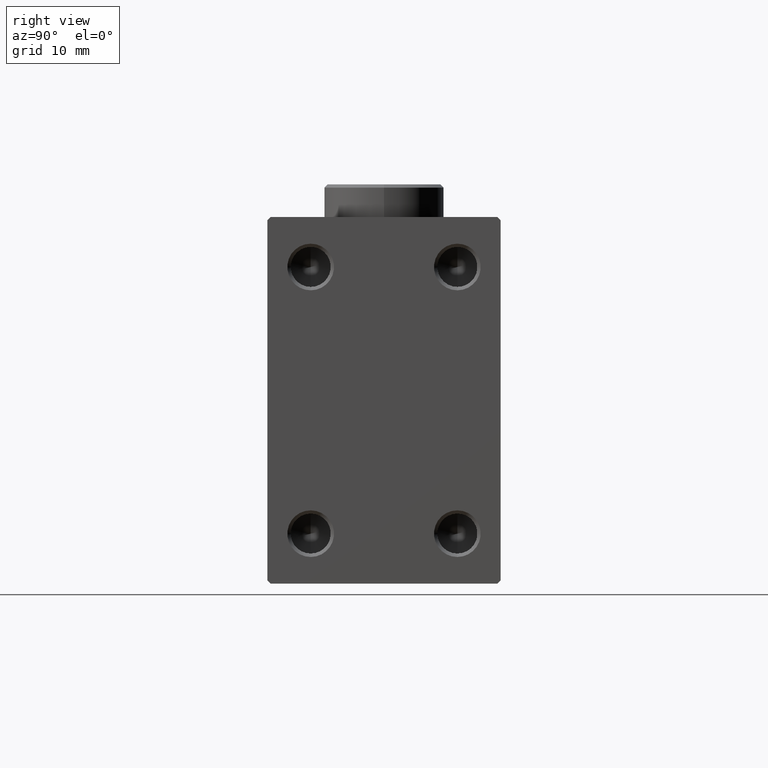
[diagram: clean part render]
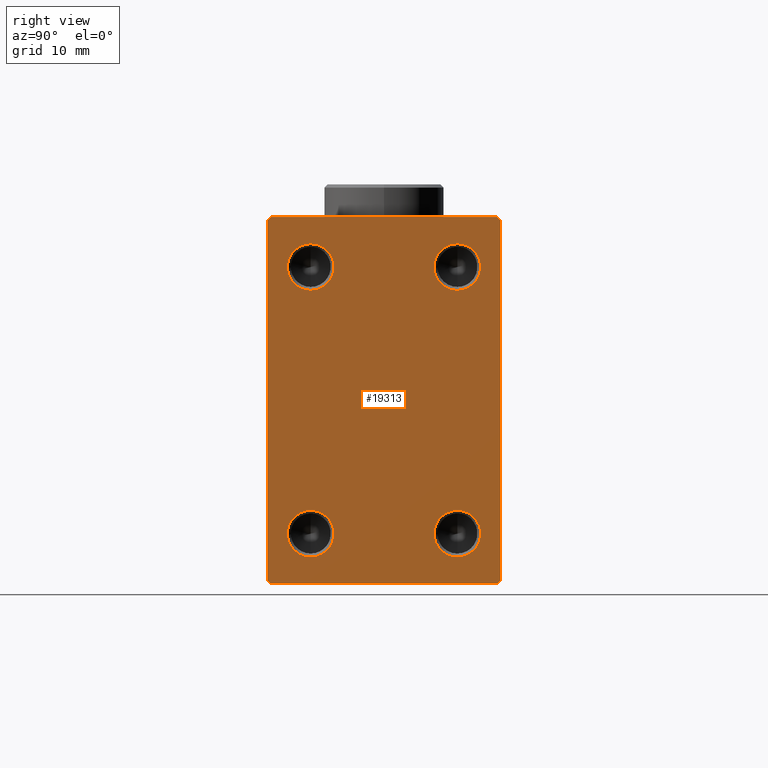
[diagram: same view with one face highlighted and labeled with its STEP entity id]
A machine part, right view. The second image highlights one B-rep face of the part: STEP entity #19313.
In plain terms, the highlighted planar face has unit normal (1, 0, 0).
Its self-contained STEP definition (entity closure, byte-faithful):
#191 = EDGE_CURVE ( 'NONE', #39435, #45269, #17670, .T. ) ;
#511 = EDGE_CURVE ( 'NONE', #15721, #7462, #8576, .T. ) ;
#721 = LINE ( 'NONE', #35725, #12367 ) ;
#990 = ORIENTED_EDGE ( 'NONE', *, *, #511, .F. ) ;
#1134 = EDGE_LOOP ( 'NONE', ( #4247, #43121 ) ) ;
#1625 = LINE ( 'NONE', #31899, #39671 ) ;
#2059 = FACE_BOUND ( 'NONE', #29364, .T. ) ;
#3313 = CARTESIAN_POINT ( 'NONE',  ( 76.00000000000000000, 11.00000000000000178, 23.50000000000000000 ) ) ;
#3581 = AXIS2_PLACEMENT_3D ( 'NONE', #18897, #43748, #40076 ) ;
#3671 = VERTEX_POINT ( 'NONE', #45486 ) ;
#3701 = DIRECTION ( 'NONE',  ( 0.000000000000000000, 1.000000000000000000, -9.912705577010325549E-17 ) ) ;
#3799 = DIRECTION ( 'NONE',  ( 0.000000000000000000, 0.000000000000000000, -1.000000000000000000 ) ) ;
#3934 = CARTESIAN_POINT ( 'NONE',  ( 76.00000000000000000, -17.49999999999999645, -27.50000000000000711 ) ) ;
#4184 = EDGE_CURVE ( 'NONE', #16703, #3671, #721, .T. ) ;
#4247 = ORIENTED_EDGE ( 'NONE', *, *, #38104, .F. ) ;
#4316 = AXIS2_PLACEMENT_3D ( 'NONE', #44422, #12898, #20023 ) ;
#4666 = DIRECTION ( 'NONE',  ( 0.000000000000000000, 0.000000000000000000, -1.000000000000000000 ) ) ;
#5207 = EDGE_CURVE ( 'NONE', #5623, #40467, #25647, .T. ) ;
#5623 = VERTEX_POINT ( 'NONE', #12389 ) ;
#6845 = DIRECTION ( 'NONE',  ( 0.000000000000000000, -1.261617073437677752E-16, 1.000000000000000000 ) ) ;
#7020 = VERTEX_POINT ( 'NONE', #33514 ) ;
#7462 = VERTEX_POINT ( 'NONE', #22167 ) ;
#8199 = VECTOR ( 'NONE', #34750, 1000.000000000000114 ) ;
#8243 = CARTESIAN_POINT ( 'NONE',  ( 76.00000000000000000, 11.00000000000000178, -16.50000000000000711 ) ) ;
#8344 = CARTESIAN_POINT ( 'NONE',  ( 76.00000000000000000, 11.00000000000000178, 16.50000000000001421 ) ) ;
#8576 = CIRCLE ( 'NONE', #22574, 3.499999999999989342 ) ;
#8866 = EDGE_CURVE ( 'NONE', #42301, #39435, #27330, .T. ) ;
#9007 = ORIENTED_EDGE ( 'NONE', *, *, #16390, .T. ) ;
#9479 = DIRECTION ( 'NONE',  ( 0.000000000000000000, -0.7071067811865474617, -0.7071067811865474617 ) ) ;
#9755 = EDGE_CURVE ( 'NONE', #40467, #5623, #16818, .T. ) ;
#9782 = ORIENTED_EDGE ( 'NONE', *, *, #191, .T. ) ;
#9881 = LINE ( 'NONE', #37519, #8199 ) ;
#10153 = CARTESIAN_POINT ( 'NONE',  ( 76.00000000000000000, -16.99999999999997868, -27.50000000000000711 ) ) ;
#10284 = CARTESIAN_POINT ( 'NONE',  ( 76.00000000000000000, 17.50000000000000711, -26.99999999999999645 ) ) ;
#11133 = ORIENTED_EDGE ( 'NONE', *, *, #35904, .F. ) ;
#11300 = EDGE_CURVE ( 'NONE', #45269, #19961, #1625, .T. ) ;
#12168 = EDGE_CURVE ( 'NONE', #19961, #13631, #13262, .T. ) ;
#12280 = DIRECTION ( 'NONE',  ( 0.000000000000000000, 0.000000000000000000, -1.000000000000000000 ) ) ;
#12367 = VECTOR ( 'NONE', #38943, 1000.000000000000000 ) ;
#12389 = CARTESIAN_POINT ( 'NONE',  ( 76.00000000000000000, 11.00000000000000178, -23.49999999999999289 ) ) ;
#12898 = DIRECTION ( 'NONE',  ( 1.000000000000000000, 0.000000000000000000, 0.000000000000000000 ) ) ;
#13262 = LINE ( 'NONE', #13489, #38957 ) ;
#13321 = DIRECTION ( 'NONE',  ( 1.000000000000000000, -0.000000000000000000, -0.000000000000000000 ) ) ;
#13489 = CARTESIAN_POINT ( 'NONE',  ( 76.00000000000000000, 17.50000000000000000, 27.49999999999999289 ) ) ;
#13631 = VERTEX_POINT ( 'NONE', #24869 ) ;
#13706 = DIRECTION ( 'NONE',  ( 0.000000000000000000, -1.000000000000000000, -1.982541115402065356E-16 ) ) ;
#14235 = CARTESIAN_POINT ( 'NONE',  ( 76.00000000000000000, -11.00000000000000533, -20.00000000000000000 ) ) ;
#15721 = VERTEX_POINT ( 'NONE', #40511 ) ;
#16100 = DIRECTION ( 'NONE',  ( 0.000000000000000000, 0.000000000000000000, -1.000000000000000000 ) ) ;
#16109 = FACE_BOUND ( 'NONE', #41031, .T. ) ;
#16390 = EDGE_CURVE ( 'NONE', #13631, #16703, #45363, .T. ) ;
#16679 = ORIENTED_EDGE ( 'NONE', *, *, #28441, .T. ) ;
#16703 = VERTEX_POINT ( 'NONE', #30169 ) ;
#16787 = EDGE_CURVE ( 'NONE', #3671, #33141, #9881, .T. ) ;
#16818 = CIRCLE ( 'NONE', #40370, 3.499999999999989342 ) ;
#16827 = ORIENTED_EDGE ( 'NONE', *, *, #4184, .T. ) ;
#16903 = DIRECTION ( 'NONE',  ( 1.000000000000000000, -0.000000000000000000, -0.000000000000000000 ) ) ;
#17045 = CARTESIAN_POINT ( 'NONE',  ( 76.00000000000000000, -11.00000000000000533, 20.00000000000000711 ) ) ;
#17326 = CARTESIAN_POINT ( 'NONE',  ( 76.00000000000000000, 17.00000000000000000, 27.49999999999999289 ) ) ;
#17670 = LINE ( 'NONE', #18131, #27728 ) ;
#18131 = CARTESIAN_POINT ( 'NONE',  ( 76.00000000000000000, 17.50000000000000711, -27.50000000000001066 ) ) ;
#18214 = LINE ( 'NONE', #3934, #36208 ) ;
#18855 = VERTEX_POINT ( 'NONE', #8344 ) ;
#18897 = CARTESIAN_POINT ( 'NONE',  ( 76.00000000000000000, 11.00000000000000178, -20.00000000000000000 ) ) ;
#19313 = ADVANCED_FACE ( 'NONE', ( #26715, #2059, #16109, #40754, #27795 ), #30409, .T. ) ;
#19557 = CARTESIAN_POINT ( 'NONE',  ( 76.00000000000000000, 11.00000000000000178, -20.00000000000000000 ) ) ;
#19564 = VERTEX_POINT ( 'NONE', #3313 ) ;
#19961 = VERTEX_POINT ( 'NONE', #17326 ) ;
#20023 = DIRECTION ( 'NONE',  ( 0.000000000000000000, 0.000000000000000000, -1.000000000000000000 ) ) ;
#20870 = CIRCLE ( 'NONE', #25287, 3.499999999999989342 ) ;
#21521 = CARTESIAN_POINT ( 'NONE',  ( 76.00000000000000000, -11.00000000000000533, 23.50000000000000000 ) ) ;
#22167 = CARTESIAN_POINT ( 'NONE',  ( 76.00000000000000000, -11.00000000000000533, -23.49999999999999289 ) ) ;
#22545 = DIRECTION ( 'NONE',  ( 1.000000000000000000, -0.000000000000000000, -0.000000000000000000 ) ) ;
#22574 = AXIS2_PLACEMENT_3D ( 'NONE', #34672, #31228, #3799 ) ;
#23903 = DIRECTION ( 'NONE',  ( 0.000000000000000000, 0.000000000000000000, -1.000000000000000000 ) ) ;
#24230 = EDGE_CURVE ( 'NONE', #7020, #35264, #41946, .T. ) ;
#24395 = CIRCLE ( 'NONE', #42773, 3.499999999999989342 ) ;
#24869 = CARTESIAN_POINT ( 'NONE',  ( 76.00000000000000000, -16.99999999999996803, 27.49999999999998579 ) ) ;
#24910 = VECTOR ( 'NONE', #40455, 1000.000000000000114 ) ;
#24946 = DIRECTION ( 'NONE',  ( 1.000000000000000000, -0.000000000000000000, -0.000000000000000000 ) ) ;
#25287 = AXIS2_PLACEMENT_3D ( 'NONE', #31883, #24946, #4666 ) ;
#25438 = ORIENTED_EDGE ( 'NONE', *, *, #5207, .F. ) ;
#25647 = CIRCLE ( 'NONE', #3581, 3.499999999999989342 ) ;
#26410 = CARTESIAN_POINT ( 'NONE',  ( 76.00000000000000000, 22.25000000000000355, -22.25000000000000355 ) ) ;
#26715 = FACE_BOUND ( 'NONE', #1134, .T. ) ;
#27024 = EDGE_CURVE ( 'NONE', #35264, #7020, #24395, .T. ) ;
#27330 = LINE ( 'NONE', #26410, #24910 ) ;
#27728 = VECTOR ( 'NONE', #6845, 1000.000000000000000 ) ;
#27795 = FACE_OUTER_BOUND ( 'NONE', #44243, .T. ) ;
#27872 = EDGE_LOOP ( 'NONE', ( #40103, #25438 ) ) ;
#27878 = DIRECTION ( 'NONE',  ( 1.000000000000000000, -0.000000000000000000, -0.000000000000000000 ) ) ;
#28433 = DIRECTION ( 'NONE',  ( -0.000000000000000000, -0.7071067811865500152, 0.7071067811865451302 ) ) ;
#28441 = EDGE_CURVE ( 'NONE', #33141, #42301, #18214, .T. ) ;
#29364 = EDGE_LOOP ( 'NONE', ( #30997, #40495 ) ) ;
#29793 = DIRECTION ( 'NONE',  ( 1.000000000000000000, -0.000000000000000000, -0.000000000000000000 ) ) ;
#29968 = ORIENTED_EDGE ( 'NONE', *, *, #12168, .T. ) ;
#30169 = CARTESIAN_POINT ( 'NONE',  ( 76.00000000000000000, -17.49999999999999645, 26.99999999999995737 ) ) ;
#30343 = CARTESIAN_POINT ( 'NONE',  ( 76.00000000000000000, 16.99999999999999289, -27.50000000000001066 ) ) ;
#30409 = PLANE ( 'NONE',  #4316 ) ;
#30978 = DIRECTION ( 'NONE',  ( 0.000000000000000000, 0.000000000000000000, -1.000000000000000000 ) ) ;
#30997 = ORIENTED_EDGE ( 'NONE', *, *, #27024, .F. ) ;
#31228 = DIRECTION ( 'NONE',  ( 1.000000000000000000, -0.000000000000000000, -0.000000000000000000 ) ) ;
#31883 = CARTESIAN_POINT ( 'NONE',  ( 76.00000000000000000, 11.00000000000000178, 20.00000000000000711 ) ) ;
#31899 = CARTESIAN_POINT ( 'NONE',  ( 76.00000000000000000, 22.24999999999993960, 22.25000000000009237 ) ) ;
#33126 = AXIS2_PLACEMENT_3D ( 'NONE', #17045, #27878, #45126 ) ;
#33141 = VERTEX_POINT ( 'NONE', #10153 ) ;
#33514 = CARTESIAN_POINT ( 'NONE',  ( 76.00000000000000000, -11.00000000000000533, 16.50000000000001421 ) ) ;
#33975 = VECTOR ( 'NONE', #9479, 1000.000000000000114 ) ;
#34672 = CARTESIAN_POINT ( 'NONE',  ( 76.00000000000000000, -11.00000000000000533, -20.00000000000000000 ) ) ;
#34750 = DIRECTION ( 'NONE',  ( -0.000000000000000000, 0.7071067811865474617, -0.7071067811865474617 ) ) ;
#35264 = VERTEX_POINT ( 'NONE', #21521 ) ;
#35356 = CARTESIAN_POINT ( 'NONE',  ( 76.00000000000000000, 17.50000000000000000, 26.99999999999999645 ) ) ;
#35725 = CARTESIAN_POINT ( 'NONE',  ( 76.00000000000000000, -17.49999999999999645, 27.49999999999998579 ) ) ;
#35904 = EDGE_CURVE ( 'NONE', #7462, #15721, #36297, .T. ) ;
#36208 = VECTOR ( 'NONE', #3701, 1000.000000000000000 ) ;
#36297 = CIRCLE ( 'NONE', #39230, 3.499999999999989342 ) ;
#36514 = ORIENTED_EDGE ( 'NONE', *, *, #11300, .T. ) ;
#37077 = EDGE_CURVE ( 'NONE', #18855, #19564, #20870, .T. ) ;
#37519 = CARTESIAN_POINT ( 'NONE',  ( 76.00000000000000000, -22.24999999999999289, -22.24999999999999289 ) ) ;
#38089 = CARTESIAN_POINT ( 'NONE',  ( 76.00000000000000000, 11.00000000000000178, 20.00000000000000711 ) ) ;
#38104 = EDGE_CURVE ( 'NONE', #19564, #18855, #41515, .T. ) ;
#38560 = AXIS2_PLACEMENT_3D ( 'NONE', #38089, #16903, #30978 ) ;
#38943 = DIRECTION ( 'NONE',  ( 0.000000000000000000, 0.000000000000000000, -1.000000000000000000 ) ) ;
#38957 = VECTOR ( 'NONE', #13706, 1000.000000000000000 ) ;
#39230 = AXIS2_PLACEMENT_3D ( 'NONE', #14235, #13321, #23903 ) ;
#39435 = VERTEX_POINT ( 'NONE', #10284 ) ;
#39671 = VECTOR ( 'NONE', #28433, 1000.000000000000114 ) ;
#40076 = DIRECTION ( 'NONE',  ( 0.000000000000000000, 0.000000000000000000, -1.000000000000000000 ) ) ;
#40103 = ORIENTED_EDGE ( 'NONE', *, *, #9755, .F. ) ;
#40370 = AXIS2_PLACEMENT_3D ( 'NONE', #19557, #22545, #16100 ) ;
#40455 = DIRECTION ( 'NONE',  ( -0.000000000000000000, 0.7071067811865474617, 0.7071067811865474617 ) ) ;
#40467 = VERTEX_POINT ( 'NONE', #8243 ) ;
#40495 = ORIENTED_EDGE ( 'NONE', *, *, #24230, .F. ) ;
#40511 = CARTESIAN_POINT ( 'NONE',  ( 76.00000000000000000, -11.00000000000000533, -16.50000000000000711 ) ) ;
#40754 = FACE_BOUND ( 'NONE', #27872, .T. ) ;
#41022 = CARTESIAN_POINT ( 'NONE',  ( 76.00000000000000000, -22.24999999999997868, 22.24999999999997868 ) ) ;
#41031 = EDGE_LOOP ( 'NONE', ( #990, #11133 ) ) ;
#41515 = CIRCLE ( 'NONE', #38560, 3.499999999999989342 ) ;
#41946 = CIRCLE ( 'NONE', #33126, 3.499999999999989342 ) ;
#42299 = ORIENTED_EDGE ( 'NONE', *, *, #16787, .T. ) ;
#42301 = VERTEX_POINT ( 'NONE', #30343 ) ;
#42773 = AXIS2_PLACEMENT_3D ( 'NONE', #44656, #29793, #12280 ) ;
#42966 = ORIENTED_EDGE ( 'NONE', *, *, #8866, .T. ) ;
#43121 = ORIENTED_EDGE ( 'NONE', *, *, #37077, .F. ) ;
#43748 = DIRECTION ( 'NONE',  ( 1.000000000000000000, -0.000000000000000000, -0.000000000000000000 ) ) ;
#44243 = EDGE_LOOP ( 'NONE', ( #29968, #9007, #16827, #42299, #16679, #42966, #9782, #36514 ) ) ;
#44422 = CARTESIAN_POINT ( 'NONE',  ( 76.00000000000000000, 0.000000000000000000, 0.000000000000000000 ) ) ;
#44656 = CARTESIAN_POINT ( 'NONE',  ( 76.00000000000000000, -11.00000000000000533, 20.00000000000000711 ) ) ;
#45126 = DIRECTION ( 'NONE',  ( 0.000000000000000000, 0.000000000000000000, -1.000000000000000000 ) ) ;
#45269 = VERTEX_POINT ( 'NONE', #35356 ) ;
#45363 = LINE ( 'NONE', #41022, #33975 ) ;
#45486 = CARTESIAN_POINT ( 'NONE',  ( 76.00000000000000000, -17.49999999999999645, -26.99999999999999289 ) ) ;